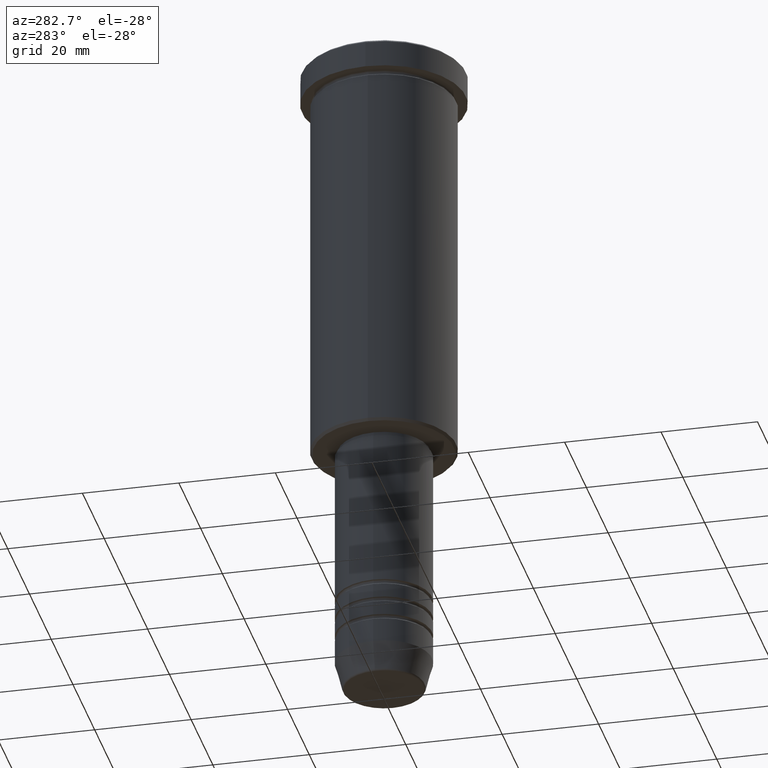
[diagram: clean part render]
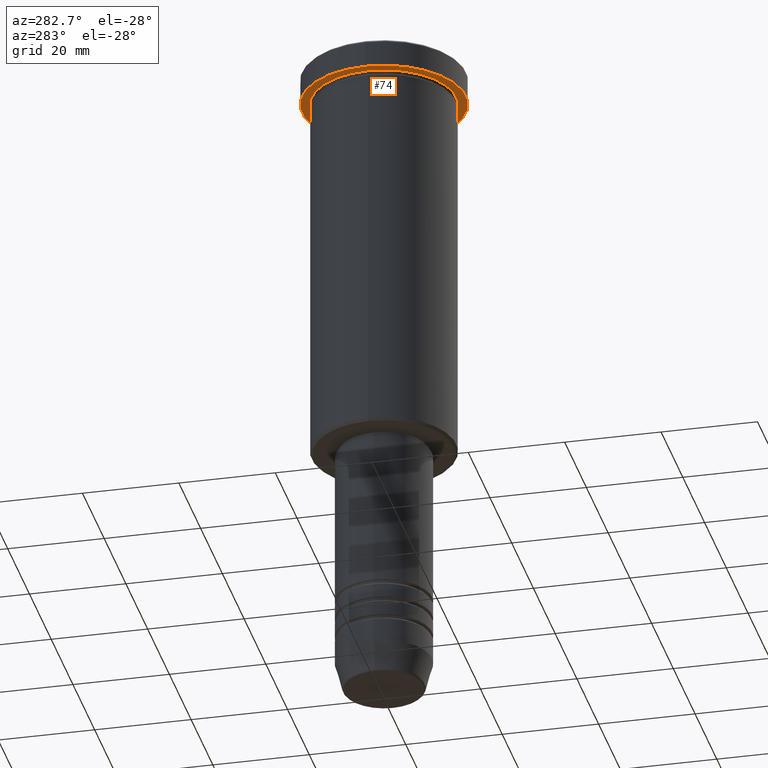
[diagram: same view with one face highlighted and labeled with its STEP entity id]
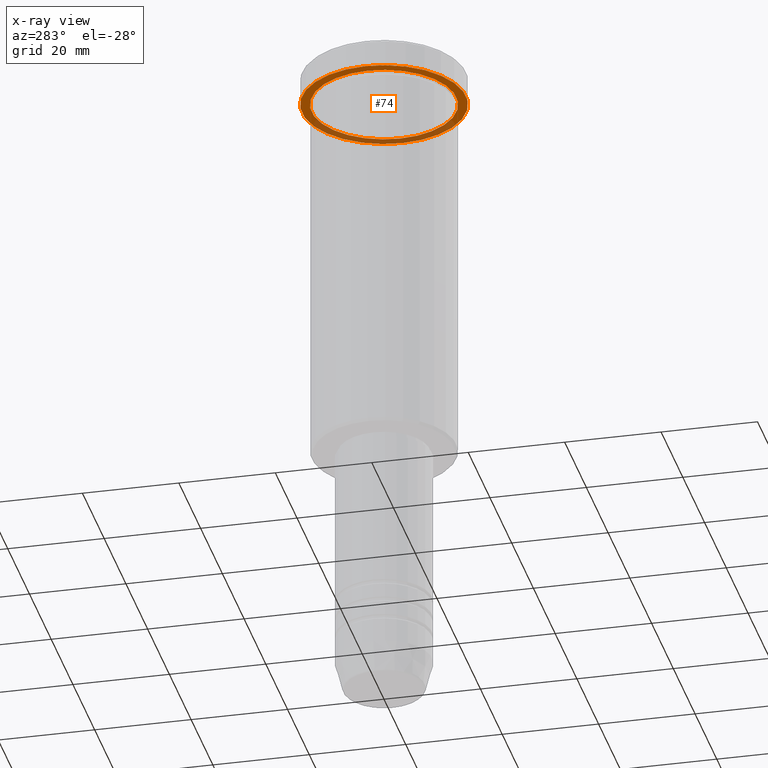
[diagram: x-ray of the same camera — body ghosted, the highlighted face saturated]
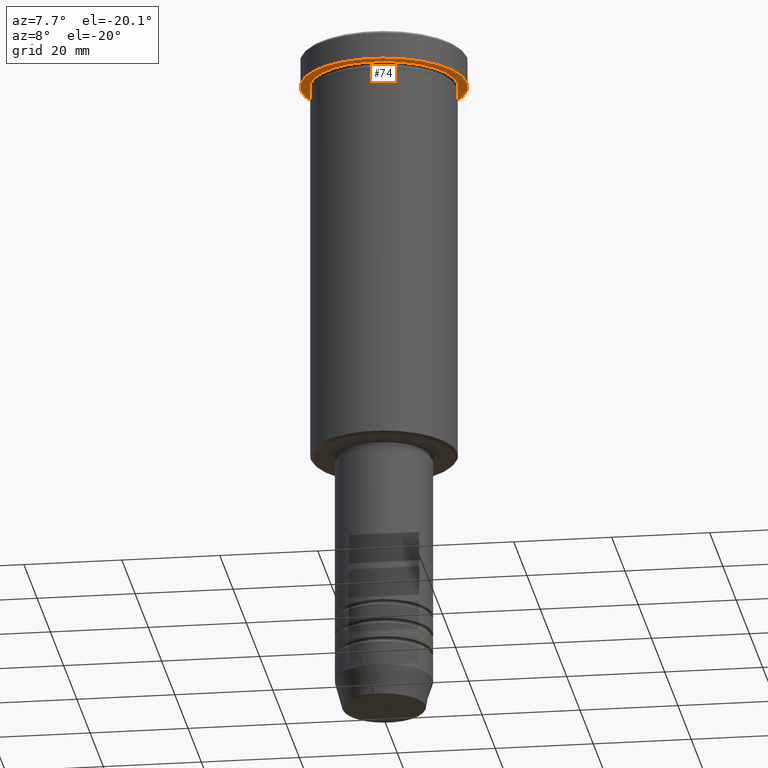
[diagram: same view with one face highlighted and labeled with its STEP entity id]
A machine part, auxiliary view. The second image highlights one B-rep face of the part: STEP entity #74.
The next image is the same camera in x-ray: the body ghosted, the highlighted face saturated — about 34% of this face is hidden behind the body in this view.
A second angle (auxiliary view) of the same face is appended — the face is thin or edge-on in the first view.
In plain terms, the highlighted planar face has unit normal (0, 0, -1).
Its self-contained STEP definition (entity closure, byte-faithful):
#4 = CARTESIAN_POINT ( 'NONE',  ( 0.000000000000000000, 0.000000000000000000, -5.999999999999994671 ) ) ;
#12 = AXIS2_PLACEMENT_3D ( 'NONE', #796, #963, #946 ) ;
#50 = FACE_BOUND ( 'NONE', #1077, .T. ) ;
#57 = DIRECTION ( 'NONE',  ( -0.000000000000000000, -0.000000000000000000, 1.000000000000000000 ) ) ;
#74 = ADVANCED_FACE ( 'NONE', ( #50, #225 ), #695, .T. ) ;
#133 = DIRECTION ( 'NONE',  ( -1.000000000000000000, 0.000000000000000000, 0.000000000000000000 ) ) ;
#200 = DIRECTION ( 'NONE',  ( 1.000000000000000000, 0.000000000000000000, 0.000000000000000000 ) ) ;
#215 = VERTEX_POINT ( 'NONE', #1033 ) ;
#225 = FACE_OUTER_BOUND ( 'NONE', #398, .T. ) ;
#272 = EDGE_CURVE ( 'NONE', #410, #1123, #1138, .T. ) ;
#287 = DIRECTION ( 'NONE',  ( -0.000000000000000000, -0.000000000000000000, 1.000000000000000000 ) ) ;
#304 = EDGE_CURVE ( 'NONE', #1123, #410, #305, .T. ) ;
#305 = CIRCLE ( 'NONE', #444, 17.00000000000000000 ) ;
#314 = DIRECTION ( 'NONE',  ( -1.000000000000000000, 0.000000000000000000, 0.000000000000000000 ) ) ;
#343 = ORIENTED_EDGE ( 'NONE', *, *, #304, .F. ) ;
#398 = EDGE_LOOP ( 'NONE', ( #801, #343 ) ) ;
#407 = EDGE_CURVE ( 'NONE', #215, #467, #627, .T. ) ;
#410 = VERTEX_POINT ( 'NONE', #1101 ) ;
#411 = CARTESIAN_POINT ( 'NONE',  ( 0.000000000000000000, 17.00000000000000000, -5.999999999999994671 ) ) ;
#416 = AXIS2_PLACEMENT_3D ( 'NONE', #411, #514, #950 ) ;
#444 = AXIS2_PLACEMENT_3D ( 'NONE', #4, #287, #200 ) ;
#467 = VERTEX_POINT ( 'NONE', #1002 ) ;
#474 = CARTESIAN_POINT ( 'NONE',  ( 0.000000000000000000, 0.000000000000000000, -5.999999999999994671 ) ) ;
#514 = DIRECTION ( 'NONE',  ( 0.000000000000000000, 0.000000000000000000, -1.000000000000000000 ) ) ;
#515 = CARTESIAN_POINT ( 'NONE',  ( 0.000000000000000000, 0.000000000000000000, -5.999999999999994671 ) ) ;
#627 = CIRCLE ( 'NONE', #780, 15.00000000000000000 ) ;
#655 = EDGE_CURVE ( 'NONE', #467, #215, #834, .T. ) ;
#695 = PLANE ( 'NONE',  #416 ) ;
#780 = AXIS2_PLACEMENT_3D ( 'NONE', #474, #858, #314 ) ;
#796 = CARTESIAN_POINT ( 'NONE',  ( 0.000000000000000000, 0.000000000000000000, -5.999999999999994671 ) ) ;
#801 = ORIENTED_EDGE ( 'NONE', *, *, #272, .F. ) ;
#834 = CIRCLE ( 'NONE', #1161, 15.00000000000000000 ) ;
#858 = DIRECTION ( 'NONE',  ( -0.000000000000000000, -0.000000000000000000, 1.000000000000000000 ) ) ;
#887 = CARTESIAN_POINT ( 'NONE',  ( -17.00000000000000000, 2.081899558550500280E-15, -5.999999999999994671 ) ) ;
#903 = ORIENTED_EDGE ( 'NONE', *, *, #655, .T. ) ;
#946 = DIRECTION ( 'NONE',  ( 1.000000000000000000, 0.000000000000000000, 0.000000000000000000 ) ) ;
#950 = DIRECTION ( 'NONE',  ( -1.000000000000000000, 0.000000000000000000, -0.000000000000000000 ) ) ;
#963 = DIRECTION ( 'NONE',  ( -0.000000000000000000, -0.000000000000000000, 1.000000000000000000 ) ) ;
#1002 = CARTESIAN_POINT ( 'NONE',  ( -15.00000000000000000, 0.000000000000000000, -5.999999999999994671 ) ) ;
#1033 = CARTESIAN_POINT ( 'NONE',  ( 15.00000000000000000, 1.836970198721029589E-15, -5.999999999999994671 ) ) ;
#1056 = ORIENTED_EDGE ( 'NONE', *, *, #407, .T. ) ;
#1077 = EDGE_LOOP ( 'NONE', ( #903, #1056 ) ) ;
#1101 = CARTESIAN_POINT ( 'NONE',  ( 17.00000000000000000, 0.000000000000000000, -5.999999999999994671 ) ) ;
#1123 = VERTEX_POINT ( 'NONE', #887 ) ;
#1138 = CIRCLE ( 'NONE', #12, 17.00000000000000000 ) ;
#1161 = AXIS2_PLACEMENT_3D ( 'NONE', #515, #57, #133 ) ;